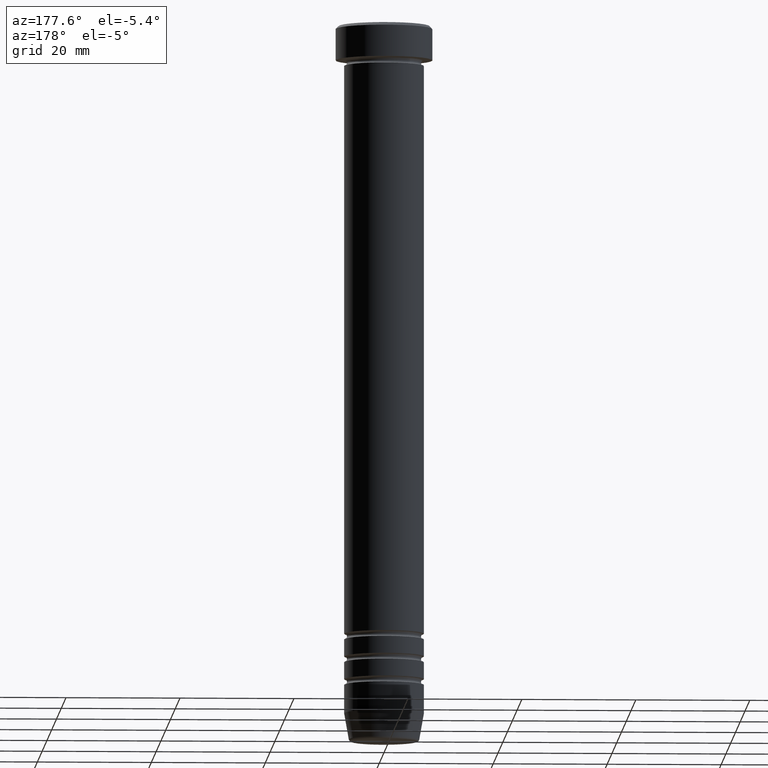
[diagram: clean part render]
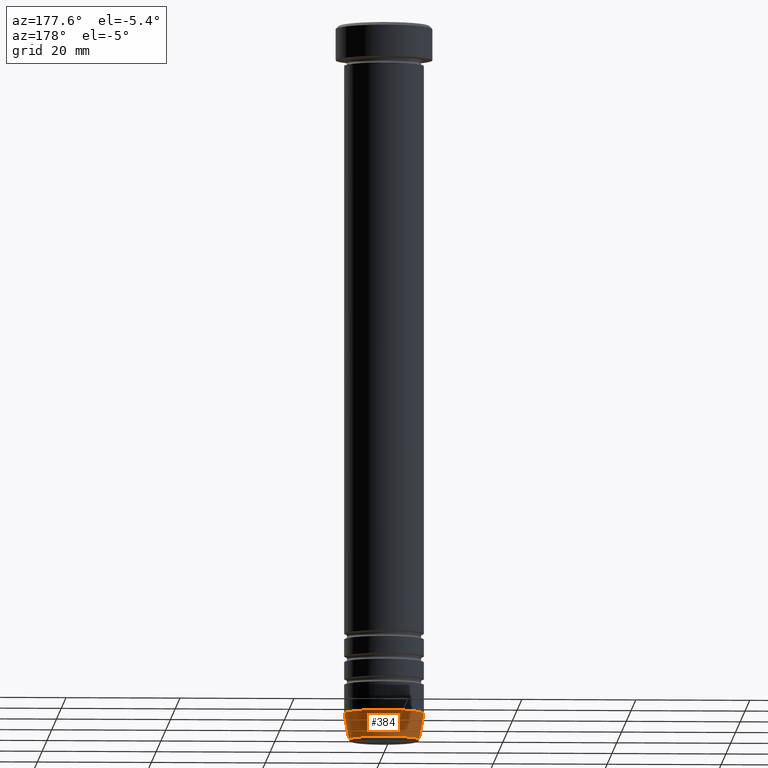
[diagram: same view with one face highlighted and labeled with its STEP entity id]
A machine part, auxiliary view. The second image highlights one B-rep face of the part: STEP entity #384.
In plain terms, the highlighted conical surface has half-angle 10 deg.
Its self-contained STEP definition (entity closure, byte-faithful):
#40 = AXIS2_PLACEMENT_3D ( 'NONE', #965, #265, #439 ) ;
#47 = CARTESIAN_POINT ( 'NONE',  ( -6.118365096457670127, 7.492836231391771693E-16, -126.0000000000000000 ) ) ;
#65 = CARTESIAN_POINT ( 'NONE',  ( 0.000000000000000000, 0.000000000000000000, -125.5868240888334526 ) ) ;
#88 = AXIS2_PLACEMENT_3D ( 'NONE', #801, #1145, #351 ) ;
#158 = EDGE_LOOP ( 'NONE', ( #741, #848, #988, #727 ) ) ;
#160 = DIRECTION ( 'NONE',  ( 0.1736481776669307753, 0.000000000000000000, 0.9848077530122080203 ) ) ;
#169 = VERTEX_POINT ( 'NONE', #1095 ) ;
#179 = LINE ( 'NONE', #47, #261 ) ;
#220 = VECTOR ( 'NONE', #160, 1000.000000000000000 ) ;
#227 = DIRECTION ( 'NONE',  ( -0.000000000000000000, -0.000000000000000000, 1.000000000000000000 ) ) ;
#240 = CIRCLE ( 'NONE', #88, 6.999999999999997335 ) ;
#261 = VECTOR ( 'NONE', #329, 1000.000000000000000 ) ;
#265 = DIRECTION ( 'NONE',  ( -0.000000000000000000, -0.000000000000000000, 1.000000000000000000 ) ) ;
#329 = DIRECTION ( 'NONE',  ( -0.1736481776669307753, 2.126576849575776845E-17, 0.9848077530122080203 ) ) ;
#332 = EDGE_CURVE ( 'NONE', #169, #405, #634, .T. ) ;
#343 = FACE_OUTER_BOUND ( 'NONE', #158, .T. ) ;
#351 = DIRECTION ( 'NONE',  ( 1.000000000000000000, 0.000000000000000000, 0.000000000000000000 ) ) ;
#354 = CONICAL_SURFACE ( 'NONE', #40, 6.118365096457670127, 0.1745329251994333919 ) ;
#384 = ADVANCED_FACE ( 'NONE', ( #343 ), #354, .T. ) ;
#405 = VERTEX_POINT ( 'NONE', #883 ) ;
#439 = DIRECTION ( 'NONE',  ( 1.000000000000000000, 0.000000000000000000, 0.000000000000000000 ) ) ;
#498 = EDGE_CURVE ( 'NONE', #169, #668, #944, .T. ) ;
#627 = EDGE_CURVE ( 'NONE', #405, #628, #240, .T. ) ;
#628 = VERTEX_POINT ( 'NONE', #721 ) ;
#634 = LINE ( 'NONE', #983, #220 ) ;
#668 = VERTEX_POINT ( 'NONE', #1052 ) ;
#676 = DIRECTION ( 'NONE',  ( -1.000000000000000000, 0.000000000000000000, 0.000000000000000000 ) ) ;
#703 = EDGE_CURVE ( 'NONE', #668, #628, #179, .T. ) ;
#721 = CARTESIAN_POINT ( 'NONE',  ( -6.999999999999997335, 8.572527594031470232E-16, -121.0000000000000000 ) ) ;
#727 = ORIENTED_EDGE ( 'NONE', *, *, #332, .F. ) ;
#741 = ORIENTED_EDGE ( 'NONE', *, *, #498, .T. ) ;
#801 = CARTESIAN_POINT ( 'NONE',  ( 0.000000000000000000, 0.000000000000000000, -121.0000000000000000 ) ) ;
#848 = ORIENTED_EDGE ( 'NONE', *, *, #703, .T. ) ;
#883 = CARTESIAN_POINT ( 'NONE',  ( 6.999999999999997335, 0.000000000000000000, -121.0000000000000000 ) ) ;
#944 = CIRCLE ( 'NONE', #1149, 6.191219157375138060 ) ;
#965 = CARTESIAN_POINT ( 'NONE',  ( 0.000000000000000000, 0.000000000000000000, -126.0000000000000000 ) ) ;
#983 = CARTESIAN_POINT ( 'NONE',  ( 6.118365096457670127, 0.000000000000000000, -126.0000000000000000 ) ) ;
#988 = ORIENTED_EDGE ( 'NONE', *, *, #627, .F. ) ;
#1052 = CARTESIAN_POINT ( 'NONE',  ( -6.191219157375138948, 8.077292158965353462E-16, -125.5868240888334526 ) ) ;
#1095 = CARTESIAN_POINT ( 'NONE',  ( 6.191219157375138948, 0.000000000000000000, -125.5868240888334526 ) ) ;
#1145 = DIRECTION ( 'NONE',  ( -0.000000000000000000, -0.000000000000000000, 1.000000000000000000 ) ) ;
#1149 = AXIS2_PLACEMENT_3D ( 'NONE', #65, #227, #676 ) ;